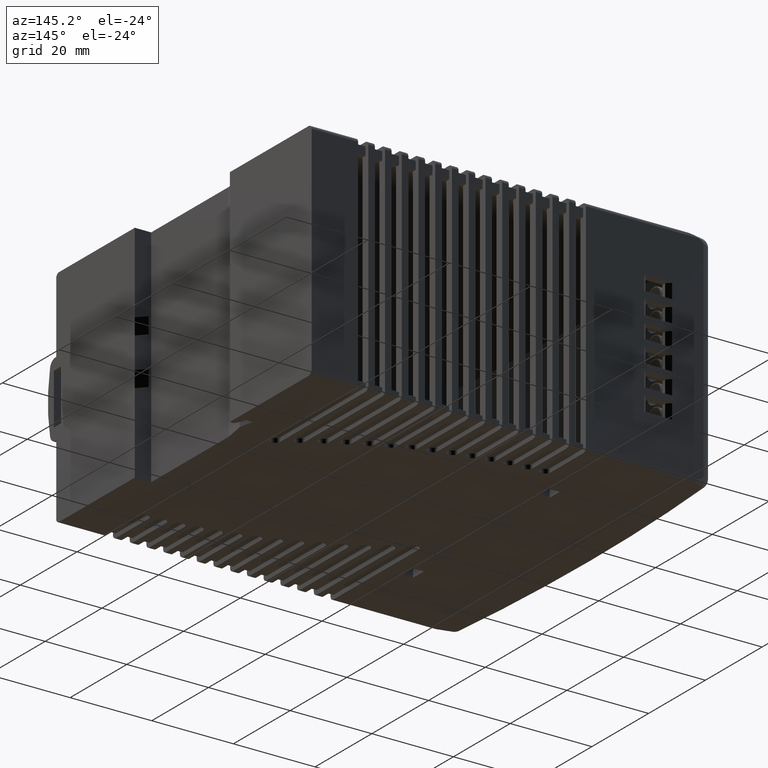
[diagram: clean part render]
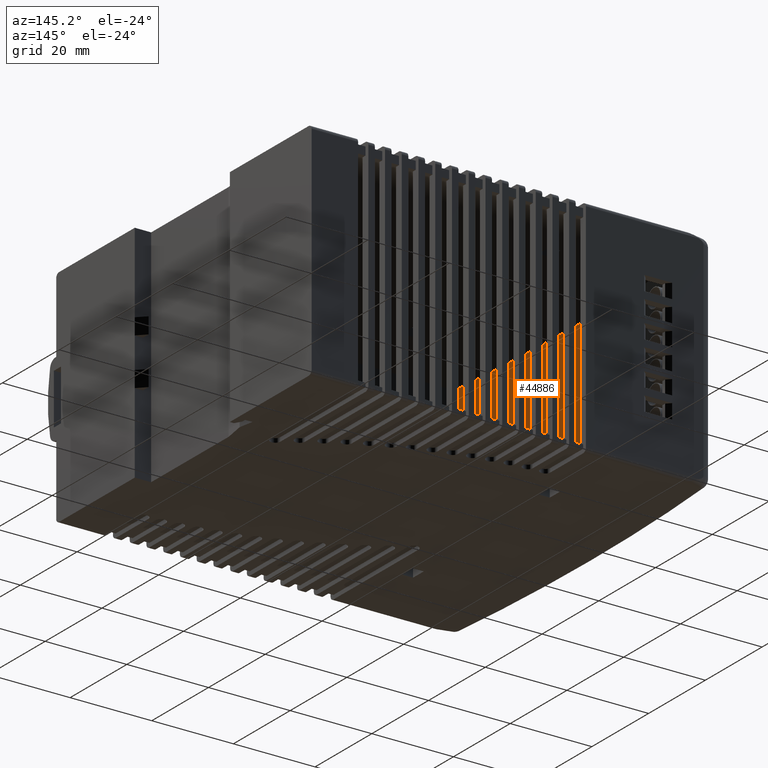
[diagram: same view with one face highlighted and labeled with its STEP entity id]
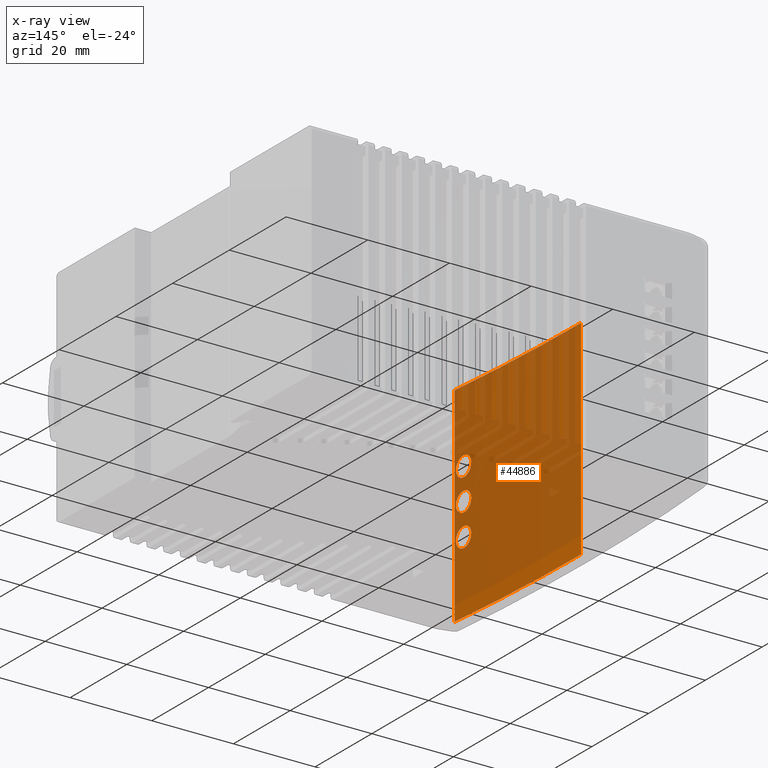
[diagram: x-ray of the same camera — body ghosted, the highlighted face saturated]
A machine part, auxiliary view. The second image highlights one B-rep face of the part: STEP entity #44886.
The next image is the same camera in x-ray: the body ghosted, the highlighted face saturated — about 83% of this face is hidden behind the body in this view.
In plain terms, the highlighted cylindrical surface (partial cylindrical patch) has radius 472.062 mm, axis along (0, 0, -1).
Its self-contained STEP definition (entity closure, byte-faithful):
#42527=CARTESIAN_POINT('',(-33.165085179319362,-68.695936176094193,35.299999999999997));
#42528=VERTEX_POINT('',#42527);
#42529=CARTESIAN_POINT('',(-33.165085179319384,-68.695936176094193,35.299999999999997));
#42530=CARTESIAN_POINT('',(-33.165085179319384,-68.695936176094193,34.998130788796338));
#42531=CARTESIAN_POINT('',(-33.159740254219322,-68.635485048291002,34.676191864724551));
#42532=CARTESIAN_POINT('',(-33.148958986003954,-68.512722762555697,34.380295030955942));
#42533=CARTESIAN_POINT('',(-33.139873596504287,-68.409270816133969,34.130942363644174));
#42534=CARTESIAN_POINT('',(-33.126986514689762,-68.262124471878707,33.899621678595906));
#42535=CARTESIAN_POINT('',(-33.112050570469805,-68.090283346046476,33.706162419289775));
#42536=CARTESIAN_POINT('',(-33.103079981003170,-67.987074859818662,33.589969993273932));
#42537=CARTESIAN_POINT('',(-33.093412239849414,-67.875472114910437,33.486137406334691));
#42538=CARTESIAN_POINT('',(-33.082562069550249,-67.749581542030882,33.390310195322087));
#42539=CARTESIAN_POINT('',(-33.062973269570463,-67.522299832759728,33.217304609475164));
#42540=CARTESIAN_POINT('',(-33.040153691347832,-67.255466858941773,33.080984139038783));
#42541=CARTESIAN_POINT('',(-33.016557364718551,-66.976323911159255,32.998463007037898));
#42542=CARTESIAN_POINT('',(-32.999727895260456,-66.777232425948228,32.939606944716196));
#42543=CARTESIAN_POINT('',(-32.982522303053230,-66.572119301681823,32.907718831579871));
#42544=CARTESIAN_POINT('',(-32.966031840401811,-66.374016484989326,32.901270447640492));
#42545=CARTESIAN_POINT('',(-32.954151406575555,-66.231294752175558,32.896624756352288));
#42546=CARTESIAN_POINT('',(-32.942359892569094,-66.088867670136949,32.904435227101196));
#42547=CARTESIAN_POINT('',(-32.930390287136504,-65.943465154441668,32.926023551318323));
#42548=CARTESIAN_POINT('',(-32.902942050929518,-65.610033729456944,32.975529061400650));
#42549=CARTESIAN_POINT('',(-32.875805125458889,-65.275649824851044,33.101105576762066));
#42550=CARTESIAN_POINT('',(-32.852854718059156,-64.989770838345535,33.286562116561839));
#42551=CARTESIAN_POINT('',(-32.841889051621436,-64.853178334649513,33.375172942449048));
#42552=CARTESIAN_POINT('',(-32.831863737184861,-64.727547875639743,33.476712041387387));
#42553=CARTESIAN_POINT('',(-32.823027736105040,-64.616377453180675,33.585624750445469));
#42554=CARTESIAN_POINT('',(-32.814144681455673,-64.504615024772647,33.695117442652432));
#42555=CARTESIAN_POINT('',(-32.805961426783568,-64.401147117291941,33.817946788362242));
#42556=CARTESIAN_POINT('',(-32.798732599546604,-64.309440125310218,33.953213662001374));
#42557=CARTESIAN_POINT('',(-32.783737994552361,-64.119214231828508,34.233794906031378));
#42558=CARTESIAN_POINT('',(-32.773376145220794,-63.986388912754862,34.564935260096995));
#42559=CARTESIAN_POINT('',(-32.768960960881479,-63.929793852059021,34.898290524869708));
#42560=CARTESIAN_POINT('',(-32.767029195227266,-63.905031942691679,35.044142702638176));
#42561=CARTESIAN_POINT('',(-32.766192622729335,-63.894291301413979,35.188832158551762));
#42562=CARTESIAN_POINT('',(-32.766336578662283,-63.896138271916108,35.331145129675107));
#42563=CARTESIAN_POINT('',(-32.766641962013189,-63.900056374000577,35.633043155747004));
#42564=CARTESIAN_POINT('',(-32.771661231327222,-63.964606858876046,35.953196625454602));
#42565=CARTESIAN_POINT('',(-32.781517488996165,-64.090393531651358,36.246351754657923));
#42566=CARTESIAN_POINT('',(-32.788760132159013,-64.182824961120161,36.461770026327883));
#42567=CARTESIAN_POINT('',(-32.798570783975791,-64.307673040221573,36.663148485336606));
#42568=CARTESIAN_POINT('',(-32.810057588451862,-64.452833334400609,36.837196121170322));
#42569=CARTESIAN_POINT('',(-32.818556104698423,-64.560230228028018,36.965965324466943));
#42570=CARTESIAN_POINT('',(-32.827777412285151,-64.676323012827424,37.079127552598614));
#42571=CARTESIAN_POINT('',(-32.838352182811924,-64.808684933441725,37.183635777221461));
#42572=CARTESIAN_POINT('',(-32.859385787363351,-65.071957624685524,37.391506450492692));
#42573=CARTESIAN_POINT('',(-32.885214746387113,-65.392170055900209,37.549438340830442));
#42574=CARTESIAN_POINT('',(-32.912378381417334,-65.724037129080031,37.630864963918818));
#42575=CARTESIAN_POINT('',(-32.927764507868808,-65.912014502040066,37.676986932424157));
#42576=CARTESIAN_POINT('',(-32.943530134833843,-66.103190503407646,37.699291769016952));
#42577=CARTESIAN_POINT('',(-32.958788721384813,-66.286906069964346,37.699983011853057));
#42578=CARTESIAN_POINT('',(-32.971702240487055,-66.442386688708723,37.700568018697467));
#42579=CARTESIAN_POINT('',(-32.985088122563639,-66.602599378143722,37.685892843161362));
#42580=CARTESIAN_POINT('',(-32.998520137670901,-66.762364992743358,37.654239613760510));
#42581=CARTESIAN_POINT('',(-33.024592692372686,-67.072482104200532,37.592798307415066));
#42582=CARTESIAN_POINT('',(-33.050587864666724,-67.377731181738881,37.465571363748744));
#42583=CARTESIAN_POINT('',(-33.073106031793245,-67.639716592617305,37.288530661611468));
#42584=CARTESIAN_POINT('',(-33.085210353930023,-67.780543143490249,37.193364937067798));
#42585=CARTESIAN_POINT('',(-33.096207147225428,-67.907749444080721,37.085689056555424));
#42586=CARTESIAN_POINT('',(-33.106049873051802,-68.021185238811057,36.968387146796125));
#42587=CARTESIAN_POINT('',(-33.125663927558882,-68.247233987922115,36.734634211644902));
#42588=CARTESIAN_POINT('',(-33.142369093655937,-68.437782799465623,36.436037765190413));
#42589=CARTESIAN_POINT('',(-33.152598877318589,-68.554147912880723,36.112699053672124));
#42590=CARTESIAN_POINT('',(-33.160992633757907,-68.649627978955436,35.847392720577702));
#42591=CARTESIAN_POINT('',(-33.165085179319384,-68.695936176094193,35.565819666099173));
#42592=CARTESIAN_POINT('',(-33.165085179319384,-68.695936176094193,35.299999999999997));
#42593=B_SPLINE_CURVE_WITH_KNOTS('',3,(#42529,#42530,#42531,#42532,#42533,#42534,#42535,#42536,#42537,#42538,#42539,#42540,#42541,#42542,#42543,#42544,#42545,#42546,#42547,#42548,#42549,#42550,#42551,#42552,#42553,#42554,#42555,#42556,#42557,#42558,#42559,#42560,#42561,#42562,#42563,#42564,#42565,#42566,#42567,#42568,#42569,#42570,#42571,#42572,#42573,#42574,#42575,#42576,#42577,#42578,#42579,#42580,#42581,#42582,#42583,#42584,#42585,#42586,#42587,#42588,#42589,#42590,#42591,#42592),.UNSPECIFIED.,.T.,.U.,(4,3,3,3,3,3,3,3,3,3,3,3,3,3,3,3,3,3,3,3,3,4),(0.0,0.090560763361098,0.166876442749335,0.212711953352293,0.295462972406938,0.354482995721842,0.397003542066661,0.494510014297123,0.541098444357436,0.587934967634798,0.685086987295293,0.727593691521938,0.817766006803892,0.884027048742016,0.933050303433781,1.030559346339257,1.085790778459331,1.132533781249554,1.223265476191953,1.272037015075555,1.369226313947820,1.448972213777571),.UNSPECIFIED.);
#42594=EDGE_CURVE('',#42528,#42528,#42593,.T.);
#42635=CARTESIAN_POINT('',(-33.165085179319362,-68.695936176094193,19.699999999999996));
#42636=VERTEX_POINT('',#42635);
#42637=CARTESIAN_POINT('',(-33.165085179319384,-68.695936176094193,19.699999999999996));
#42638=CARTESIAN_POINT('',(-33.165085179319384,-68.695936176094193,19.398130788796333));
#42639=CARTESIAN_POINT('',(-33.159740254219315,-68.635485048291002,19.076191864724542));
#42640=CARTESIAN_POINT('',(-33.148958986003947,-68.512722762555697,18.780295030955937));
#42641=CARTESIAN_POINT('',(-33.139873596505154,-68.409270816143959,18.530942363668256));
#42642=CARTESIAN_POINT('',(-33.126986514692291,-68.262124471907413,18.299621678640396));
#42643=CARTESIAN_POINT('',(-33.112050570474146,-68.090283346096271,18.106162419345839));
#42644=CARTESIAN_POINT('',(-33.103079981007298,-67.987074859866084,17.989969993320024));
#42645=CARTESIAN_POINT('',(-33.093412239853372,-67.875472114956153,17.886137406373873));
#42646=CARTESIAN_POINT('',(-33.082562069553887,-67.749581542073088,17.790310195354206));
#42647=CARTESIAN_POINT('',(-33.062973269574762,-67.522299832809821,17.617304609505361));
#42648=CARTESIAN_POINT('',(-33.040153691352749,-67.255466858999412,17.480984139064148));
#42649=CARTESIAN_POINT('',(-33.016557364723901,-66.976323911222437,17.398463007056570));
#42650=CARTESIAN_POINT('',(-32.999727895277289,-66.777232426147521,17.339606944769166));
#42651=CARTESIAN_POINT('',(-32.982522303081915,-66.572119302023964,17.307718831629479));
#42652=CARTESIAN_POINT('',(-32.966031840440564,-66.374016485454774,17.301270447655636));
#42653=CARTESIAN_POINT('',(-32.954151406628220,-66.231294752809873,17.296624756345210));
#42654=CARTESIAN_POINT('',(-32.942359892637874,-66.088867670968625,17.304435227041211));
#42655=CARTESIAN_POINT('',(-32.930390287220000,-65.943465155455982,17.326023551167726));
#42656=CARTESIAN_POINT('',(-32.902942051012971,-65.610033730479529,17.375529061103226));
#42657=CARTESIAN_POINT('',(-32.875805125537291,-65.275649825820949,17.501105576309506));
#42658=CARTESIAN_POINT('',(-32.852854718129450,-64.989770839221123,17.686562115993816));
#42659=CARTESIAN_POINT('',(-32.841889051715604,-64.853178335825717,17.775172941601603));
#42660=CARTESIAN_POINT('',(-32.831863737297297,-64.727547877049631,17.876712040204247));
#42661=CARTESIAN_POINT('',(-32.823027736228951,-64.616377454739649,17.985624748918156));
#42662=CARTESIAN_POINT('',(-32.814144681533804,-64.504615025760245,18.095117441485705));
#42663=CARTESIAN_POINT('',(-32.805961426829263,-64.401147117871190,18.217946787551540));
#42664=CARTESIAN_POINT('',(-32.798732599562520,-64.309440125512168,18.353213661703517));
#42665=CARTESIAN_POINT('',(-32.783737994565257,-64.119214231993212,18.633794905697876));
#42666=CARTESIAN_POINT('',(-32.773376145229541,-63.986388912866921,18.964935259741409));
#42667=CARTESIAN_POINT('',(-32.768960960886197,-63.929793852119566,19.298290524513071));
#42668=CARTESIAN_POINT('',(-32.767029195229426,-63.905031942719482,19.444142702341182));
#42669=CARTESIAN_POINT('',(-32.766192622729903,-63.894291301421291,19.588832158323619));
#42670=CARTESIAN_POINT('',(-32.766336578662113,-63.896138271913856,19.731145129501883));
#42671=CARTESIAN_POINT('',(-32.766641962011320,-63.900056373976533,20.033043155573925));
#42672=CARTESIAN_POINT('',(-32.771661231323591,-63.964606858829384,20.353196625291872));
#42673=CARTESIAN_POINT('',(-32.781517488991220,-64.090393531588205,20.646351754510739));
#42674=CARTESIAN_POINT('',(-32.788760132140055,-64.182824960878406,20.861770025804134));
#42675=CARTESIAN_POINT('',(-32.798570783933563,-64.307673039684403,21.063148484491546));
#42676=CARTESIAN_POINT('',(-32.810057588382783,-64.452833333527494,21.237196120123443));
#42677=CARTESIAN_POINT('',(-32.818556104649240,-64.560230227408908,21.365965323873311));
#42678=CARTESIAN_POINT('',(-32.827777412260112,-64.676323012514231,21.479127552360044));
#42679=CARTESIAN_POINT('',(-32.838352182818028,-64.808684933518080,21.583635777281749));
#42680=CARTESIAN_POINT('',(-32.859385787370350,-65.071957624772480,21.791506450544031));
#42681=CARTESIAN_POINT('',(-32.885214746394738,-65.392170055994228,21.949438340867967));
#42682=CARTESIAN_POINT('',(-32.912378381425171,-65.724037129175812,22.030864963942317));
#42683=CARTESIAN_POINT('',(-32.927764507876532,-65.912014502133957,22.076986932439006));
#42684=CARTESIAN_POINT('',(-32.943530134841289,-66.103190503497672,22.099291769023782));
#42685=CARTESIAN_POINT('',(-32.958788721391862,-66.286906070049199,22.099983011853372));
#42686=CARTESIAN_POINT('',(-32.971702240492299,-66.442386688771492,22.100568018692201));
#42687=CARTESIAN_POINT('',(-32.985088122567475,-66.602599378189552,22.085892843154042));
#42688=CARTESIAN_POINT('',(-32.998520137672998,-66.762364992768354,22.054239613755552));
#42689=CARTESIAN_POINT('',(-33.024592692374888,-67.072482104226623,21.992798307406474));
#42690=CARTESIAN_POINT('',(-33.050587864668927,-67.377731181764744,21.865571363735924));
#42691=CARTESIAN_POINT('',(-33.073106031795334,-67.639716592641619,21.688530661595035));
#42692=CARTESIAN_POINT('',(-33.085210353931778,-67.780543143510599,21.593364937051536));
#42693=CARTESIAN_POINT('',(-33.096207147226821,-67.907749444096837,21.485689056540657));
#42694=CARTESIAN_POINT('',(-33.106049873052967,-68.021185238824486,21.368387146782251));
#42695=CARTESIAN_POINT('',(-33.125663927559920,-68.247233987933981,21.134634211628885));
#42696=CARTESIAN_POINT('',(-33.142369093656733,-68.437782799474789,20.836037765172957));
#42697=CARTESIAN_POINT('',(-33.152598877319150,-68.554147912887146,20.512699053654256));
#42698=CARTESIAN_POINT('',(-33.160992633758099,-68.649627978957596,20.247392720565088));
#42699=CARTESIAN_POINT('',(-33.165085179319377,-68.695936176094193,19.965819666093200));
#42700=CARTESIAN_POINT('',(-33.165085179319377,-68.695936176094193,19.699999999999996));
#42701=B_SPLINE_CURVE_WITH_KNOTS('',3,(#42637,#42638,#42639,#42640,#42641,#42642,#42643,#42644,#42645,#42646,#42647,#42648,#42649,#42650,#42651,#42652,#42653,#42654,#42655,#42656,#42657,#42658,#42659,#42660,#42661,#42662,#42663,#42664,#42665,#42666,#42667,#42668,#42669,#42670,#42671,#42672,#42673,#42674,#42675,#42676,#42677,#42678,#42679,#42680,#42681,#42682,#42683,#42684,#42685,#42686,#42687,#42688,#42689,#42690,#42691,#42692,#42693,#42694,#42695,#42696,#42697,#42698,#42699,#42700),.UNSPECIFIED.,.T.,.U.,(4,3,3,3,3,3,3,3,3,3,3,3,3,3,3,3,3,3,3,3,3,4),(0.0,0.090560763361098,0.166876442741964,0.212711953347170,0.295462972400695,0.354482995675619,0.397003541967788,0.494510014197573,0.541098444139660,0.587934967600419,0.685086987260647,0.727593691504691,0.817766006788801,0.884027048609166,0.933050303443208,1.030559346348637,1.085790778467833,1.132533781251990,1.223265476194759,1.272037015077476,1.369226313949609,1.448972213777571),.UNSPECIFIED.);
#42702=EDGE_CURVE('',#42636,#42636,#42701,.T.);
#42763=CARTESIAN_POINT('',(-33.165085179319362,-68.695936176094193,27.499999999999982));
#42764=VERTEX_POINT('',#42763);
#42765=CARTESIAN_POINT('',(-33.165085179319377,-68.695936176094193,27.499999999999993));
#42766=CARTESIAN_POINT('',(-33.165085179319377,-68.695936176094193,27.198130788796327));
#42767=CARTESIAN_POINT('',(-33.159740254219322,-68.635485048291017,26.876191864724543));
#42768=CARTESIAN_POINT('',(-33.148958986003954,-68.512722762555711,26.580295030955941));
#42769=CARTESIAN_POINT('',(-33.139873596501964,-68.409270816107551,26.330942363580448));
#42770=CARTESIAN_POINT('',(-33.126986514683111,-68.262124471802750,26.099621678478176));
#42771=CARTESIAN_POINT('',(-33.112050570458351,-68.090283345914727,25.906162419141435));
#42772=CARTESIAN_POINT('',(-33.103079980992327,-67.987074859693593,25.789969993152457));
#42773=CARTESIAN_POINT('',(-33.093412239839040,-67.875472114790384,25.686137406231822));
#42774=CARTESIAN_POINT('',(-33.082562069540757,-67.749581541920719,25.590310195238217));
#42775=CARTESIAN_POINT('',(-33.062973269559080,-67.522299832626942,25.417304609394790));
#42776=CARTESIAN_POINT('',(-33.040153691334616,-67.255466858786605,25.280984138970176));
#42777=CARTESIAN_POINT('',(-33.016557364703985,-66.976323910986935,25.198463006986952));
#42778=CARTESIAN_POINT('',(-32.999727895219856,-66.777232425467020,25.139606944590145));
#42779=CARTESIAN_POINT('',(-32.982522302985778,-66.572119300877119,25.107718831464108));
#42780=CARTESIAN_POINT('',(-32.966031840311629,-66.374016483906018,25.101270447605224));
#42781=CARTESIAN_POINT('',(-32.954151406453128,-66.231294750700926,25.096624756368808));
#42782=CARTESIAN_POINT('',(-32.942359892409307,-66.088867668204827,25.104435227240614));
#42783=CARTESIAN_POINT('',(-32.930390286942597,-65.943465152086205,25.126023551668045));
#42784=CARTESIAN_POINT('',(-32.902942050735710,-65.610033727082239,25.175529062091357));
#42785=CARTESIAN_POINT('',(-32.875805125276834,-65.275649822598794,25.301105577812962));
#42786=CARTESIAN_POINT('',(-32.852854717895923,-64.989770836312260,25.486562117880862));
#42787=CARTESIAN_POINT('',(-32.841889051402362,-64.853178331913284,25.575172944420082));
#42788=CARTESIAN_POINT('',(-32.831863736923069,-64.727547872356851,25.676712044142043));
#42789=CARTESIAN_POINT('',(-32.823027735816360,-64.616377449548651,25.785624754003742));
#42790=CARTESIAN_POINT('',(-32.814144681273667,-64.504615022471782,25.895117445370602));
#42791=CARTESIAN_POINT('',(-32.805961426677101,-64.401147115942507,26.017946790250942));
#42792=CARTESIAN_POINT('',(-32.798732599509520,-64.309440124839824,26.153213662695208));
#42793=CARTESIAN_POINT('',(-32.783737994522340,-64.119214231445255,26.433794906807673));
#42794=CARTESIAN_POINT('',(-32.773376145200452,-63.986388912494320,26.764935260923977));
#42795=CARTESIAN_POINT('',(-32.768960960870501,-63.929793851918305,27.098290525698527));
#42796=CARTESIAN_POINT('',(-32.767029195222250,-63.905031942627261,27.244142703327224));
#42797=CARTESIAN_POINT('',(-32.766192622728020,-63.894291301397161,27.388832159079744));
#42798=CARTESIAN_POINT('',(-32.766336578662688,-63.896138271921288,27.531145130074236));
#42799=CARTESIAN_POINT('',(-32.766641962017509,-63.900056374055971,27.833043156145784));
#42800=CARTESIAN_POINT('',(-32.771661231335614,-63.964606858983558,28.153196625829580));
#42801=CARTESIAN_POINT('',(-32.781517489007570,-64.090393531796863,28.446351754997046));
#42802=CARTESIAN_POINT('',(-32.788760132203983,-64.182824961693726,28.661770027573230));
#42803=CARTESIAN_POINT('',(-32.798570784076645,-64.307673041504344,28.863148487355655));
#42804=CARTESIAN_POINT('',(-32.810057588617227,-64.452833336490400,29.037196123675958));
#42805=CARTESIAN_POINT('',(-32.818556104816061,-64.560230229508662,29.165965325886305));
#42806=CARTESIAN_POINT('',(-32.827777412344886,-64.676323013574404,29.279127553167037));
#42807=CARTESIAN_POINT('',(-32.838352182796974,-64.808684933254568,29.383635777073678));
#42808=CARTESIAN_POINT('',(-32.859385787346156,-65.071957624471565,29.591506450366214));
#42809=CARTESIAN_POINT('',(-32.885214746368263,-65.392170055667847,29.749438340737534));
#42810=CARTESIAN_POINT('',(-32.912378381397865,-65.724037128842241,29.830864963860471));
#42811=CARTESIAN_POINT('',(-32.927764507849417,-65.912014501804407,29.876986932386668));
#42812=CARTESIAN_POINT('',(-32.943530134814935,-66.103190503178922,29.899291768999387));
#42813=CARTESIAN_POINT('',(-32.958788721366695,-66.286906069746166,29.899983011852232));
#42814=CARTESIAN_POINT('',(-32.971702240473583,-66.442386688547359,29.900568018710988));
#42815=CARTESIAN_POINT('',(-32.985088122553748,-66.602599378025957,29.885892843180166));
#42816=CARTESIAN_POINT('',(-32.998520137665494,-66.762364992679167,29.854239613773224));
#42817=CARTESIAN_POINT('',(-33.024592692367030,-67.072482104133869,29.792798307437060));
#42818=CARTESIAN_POINT('',(-33.050587864661090,-67.377731181672985,29.665571363781410));
#42819=CARTESIAN_POINT('',(-33.073106031787937,-67.639716592555544,29.488530661653197));
#42820=CARTESIAN_POINT('',(-33.085210353925653,-67.780543143439573,29.393364937108405));
#42821=CARTESIAN_POINT('',(-33.096207147222046,-67.907749444041627,29.285689056591423));
#42822=CARTESIAN_POINT('',(-33.106049873049066,-68.021185238779509,29.168387146828756));
#42823=CARTESIAN_POINT('',(-33.125663927556317,-68.247233987892685,28.934634211684184));
#42824=CARTESIAN_POINT('',(-33.142369093653812,-68.437782799441464,28.636037765235606));
#42825=CARTESIAN_POINT('',(-33.152598877317047,-68.554147912863172,28.312699053720877));
#42826=CARTESIAN_POINT('',(-33.160992633757388,-68.649627978949511,28.047392720612134));
#42827=CARTESIAN_POINT('',(-33.165085179319377,-68.695936176094193,27.765819666115451));
#42828=CARTESIAN_POINT('',(-33.165085179319377,-68.695936176094193,27.499999999999993));
#42829=B_SPLINE_CURVE_WITH_KNOTS('',3,(#42765,#42766,#42767,#42768,#42769,#42770,#42771,#42772,#42773,#42774,#42775,#42776,#42777,#42778,#42779,#42780,#42781,#42782,#42783,#42784,#42785,#42786,#42787,#42788,#42789,#42790,#42791,#42792,#42793,#42794,#42795,#42796,#42797,#42798,#42799,#42800,#42801,#42802,#42803,#42804,#42805,#42806,#42807,#42808,#42809,#42810,#42811,#42812,#42813,#42814,#42815,#42816,#42817,#42818,#42819,#42820,#42821,#42822,#42823,#42824,#42825,#42826,#42827,#42828),.UNSPECIFIED.,.T.,.U.,(4,3,3,3,3,3,3,3,3,3,3,3,3,3,3,3,3,3,3,3,3,4),(0.0,0.090560763361098,0.166876442768841,0.212711953365664,0.295462972423968,0.354482995829425,0.397003542296266,0.494510014528288,0.541098444864796,0.587934967714878,0.685086987375810,0.727593691561676,0.817766006838663,0.884027049059988,0.933050303410674,1.030559346315967,1.085790778437467,1.132533781243292,1.223265476184823,1.272037015071031,1.369226313942934,1.448972213777571),.UNSPECIFIED.);
#42830=EDGE_CURVE('',#42764,#42764,#42829,.T.);
#44786=CARTESIAN_POINT('',(-31.338970108572795,-27.214058266398141,53.0));
#44787=VERTEX_POINT('',#44786);
#44794=CARTESIAN_POINT('',(-33.202543971244076,-69.118398919256975,52.999999999999986));
#44795=VERTEX_POINT('',#44794);
#44796=CARTESIAN_POINT('',(-503.401470108573110,-27.214058266398141,53.0));
#44797=DIRECTION('',(0.0,0.0,-1.0));
#44798=DIRECTION('',(0.995781147000659,-0.091760052735662,0.0));
#44799=AXIS2_PLACEMENT_3D('',#44796,#44797,#44798);
#44800=CIRCLE('',#44799,472.062499999998120);
#44801=EDGE_CURVE('',#44787,#44795,#44800,.T.);
#44836=CARTESIAN_POINT('',(-31.338970108572795,-27.214058266398141,2.0));
#44837=VERTEX_POINT('',#44836);
#44844=CARTESIAN_POINT('',(-31.338970108572795,-27.214058266398141,2.0));
#44845=DIRECTION('',(0.0,0.0,1.0));
#44846=VECTOR('',#44845,51.0);
#44847=LINE('',#44844,#44846);
#44848=EDGE_CURVE('',#44837,#44787,#44847,.T.);
#44853=CARTESIAN_POINT('',(-503.401470108573110,-27.214058266398141,0.0));
#44854=DIRECTION('',(0.0,0.0,1.0));
#44855=DIRECTION('',(0.995781147000659,-0.091760052735662,0.0));
#44856=AXIS2_PLACEMENT_3D('',#44853,#44854,#44855);
#44857=CYLINDRICAL_SURFACE('',#44856,472.062499999998120);
#44858=ORIENTED_EDGE('',*,*,#44848,.F.);
#44859=CARTESIAN_POINT('',(-33.202543971244069,-69.118398919256975,2.0));
#44860=VERTEX_POINT('',#44859);
#44861=CARTESIAN_POINT('',(-503.401470108573110,-27.214058266398141,2.0));
#44862=DIRECTION('',(0.0,0.0,1.0));
#44863=DIRECTION('',(0.995781147000659,-0.091760052735662,0.0));
#44864=AXIS2_PLACEMENT_3D('',#44861,#44862,#44863);
#44865=CIRCLE('',#44864,472.062499999998120);
#44866=EDGE_CURVE('',#44837,#44860,#44865,.F.);
#44867=ORIENTED_EDGE('',*,*,#44866,.T.);
#44868=CARTESIAN_POINT('',(-33.202543971244069,-69.118398919256975,2.0));
#44869=DIRECTION('',(0.0,0.0,1.0));
#44870=VECTOR('',#44869,50.999999999999986);
#44871=LINE('',#44868,#44870);
#44872=EDGE_CURVE('',#44860,#44795,#44871,.T.);
#44873=ORIENTED_EDGE('',*,*,#44872,.T.);
#44874=ORIENTED_EDGE('',*,*,#44801,.F.);
#44875=EDGE_LOOP('',(#44858,#44867,#44873,#44874));
#44876=FACE_OUTER_BOUND('',#44875,.T.);
#44877=ORIENTED_EDGE('',*,*,#42594,.T.);
#44878=EDGE_LOOP('',(#44877));
#44879=FACE_BOUND('',#44878,.T.);
#44880=ORIENTED_EDGE('',*,*,#42702,.T.);
#44881=EDGE_LOOP('',(#44880));
#44882=FACE_BOUND('',#44881,.T.);
#44883=ORIENTED_EDGE('',*,*,#42830,.T.);
#44884=EDGE_LOOP('',(#44883));
#44885=FACE_BOUND('',#44884,.T.);
#44886=ADVANCED_FACE('',(#44876,#44879,#44882,#44885),#44857,.F.);